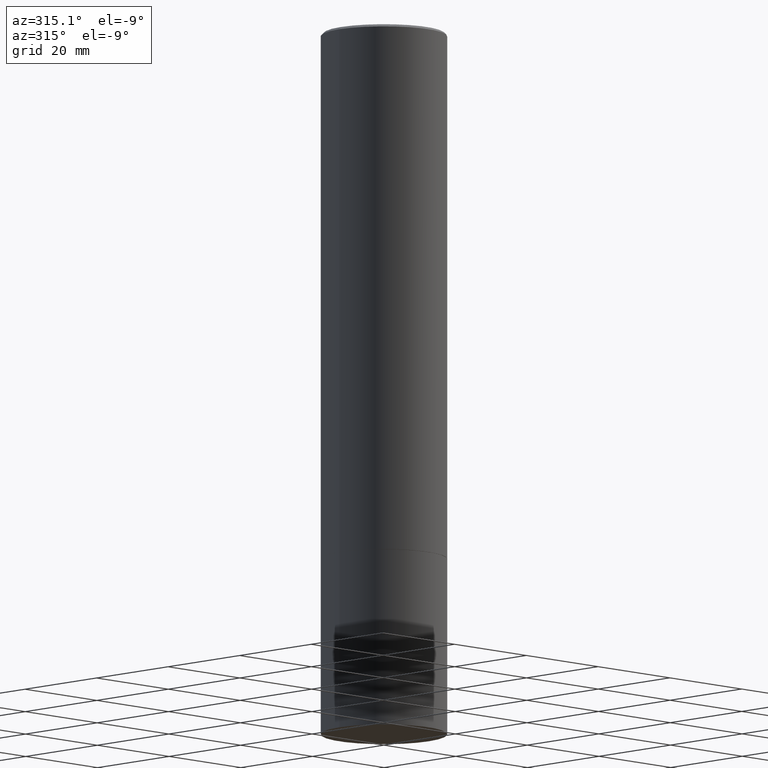
[diagram: clean part render]
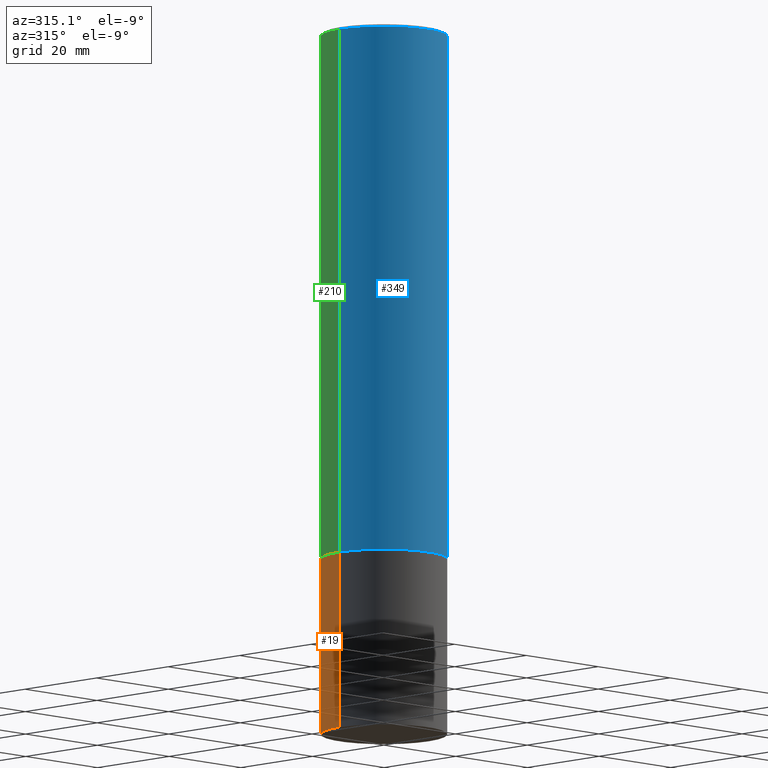
[diagram: same view with three faces highlighted in distinct colors, each labeled with its STEP entity id]
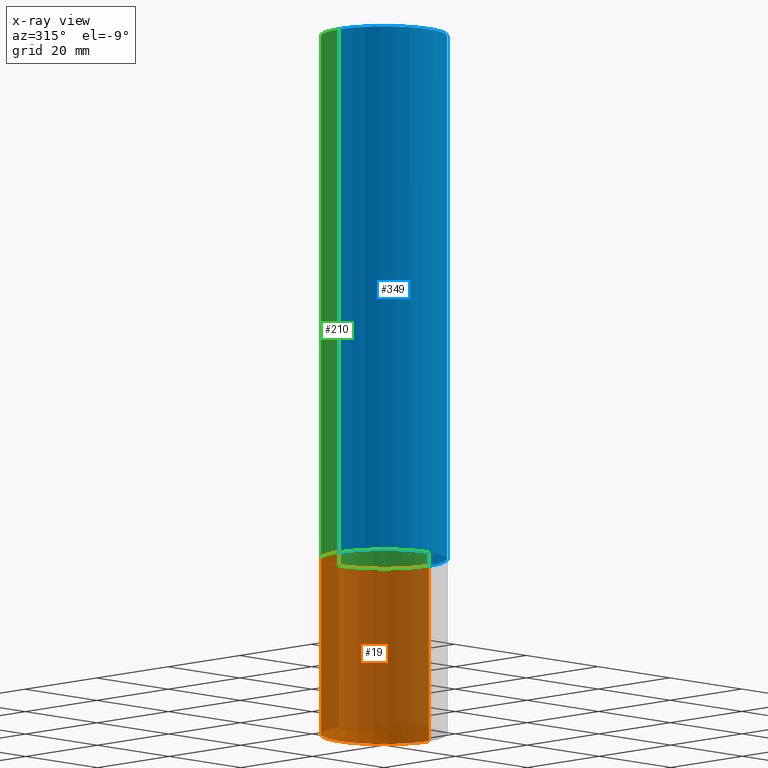
[diagram: x-ray of the same camera — body ghosted, the three highlighted faces saturated]
A machine part, auxiliary view with three faces highlighted in distinct colors.
The next image is the same camera in x-ray (body ghosted, the three faces saturated) — at least one of them is partly hidden behind the body in this view.
Their STEP definitions:

[orange] entity #19 — the highlighted cylindrical surface (partial cylindrical patch) has radius 12.5006 mm, axis along (-0, 0, 1).
#9 = ORIENTED_EDGE ( 'NONE', *, *, #68, .T. ) ;
#13 = VERTEX_POINT ( 'NONE', #352 ) ;
#19 = ADVANCED_FACE ( 'NONE', ( #126 ), #354, .T. ) ;
#24 = DIRECTION ( 'NONE',  ( -2.445468806185136597E-29, 3.491481338843145583E-15, 1.000000000000000000 ) ) ;
#31 = AXIS2_PLACEMENT_3D ( 'NONE', #102, #301, #192 ) ;
#48 = CARTESIAN_POINT ( 'NONE',  ( 0.4921499999999999764, -1.786975064033308982E-14, -4.133799999999999919 ) ) ;
#53 = LINE ( 'NONE', #285, #299 ) ;
#63 = CARTESIAN_POINT ( 'NONE',  ( 1.347893496593123646E-28, -1.924434684343564878E-14, -5.511800000000000033 ) ) ;
#68 = EDGE_CURVE ( 'NONE', #219, #13, #101, .T. ) ;
#73 = CARTESIAN_POINT ( 'NONE',  ( 0.4921499999999999764, -3.436665081823295777E-15, 2.399810400207969603E-29 ) ) ;
#101 = CIRCLE ( 'NONE', #128, 0.4921499999999999764 ) ;
#102 = CARTESIAN_POINT ( 'NONE',  ( 0.000000000000000000, 0.000000000000000000, 0.000000000000000000 ) ) ;
#111 = CARTESIAN_POINT ( 'NONE',  ( -0.4921499999999999764, -1.334178012692939009E-14, -4.133799999999999919 ) ) ;
#126 = FACE_OUTER_BOUND ( 'NONE', #145, .T. ) ;
#127 = DIRECTION ( 'NONE',  ( -2.445468806185136877E-29, 3.491481338843145188E-15, 1.000000000000000000 ) ) ;
#128 = AXIS2_PLACEMENT_3D ( 'NONE', #63, #24, #143 ) ;
#130 = DIRECTION ( 'NONE',  ( -2.445468806185136877E-29, 3.491481338843145188E-15, 1.000000000000000000 ) ) ;
#140 = VERTEX_POINT ( 'NONE', #48 ) ;
#143 = DIRECTION ( 'NONE',  ( 1.000000000000000000, -6.982962677686265922E-15, 0.000000000000000000 ) ) ;
#145 = EDGE_LOOP ( 'NONE', ( #9, #289, #320, #321 ) ) ;
#159 = EDGE_CURVE ( 'NONE', #13, #366, #53, .T. ) ;
#165 = EDGE_CURVE ( 'NONE', #219, #140, #208, .T. ) ;
#174 = DIRECTION ( 'NONE',  ( 1.000000000000000000, -6.982962677686261977E-15, 0.000000000000000000 ) ) ;
#192 = DIRECTION ( 'NONE',  ( 1.000000000000000000, -6.982962677686265922E-15, 4.876176775795935793E-29 ) ) ;
#193 = DIRECTION ( 'NONE',  ( -2.445468806185136597E-29, 3.491481338843145583E-15, 1.000000000000000000 ) ) ;
#194 = VECTOR ( 'NONE', #130, 39.37007874015748143 ) ;
#208 = LINE ( 'NONE', #73, #194 ) ;
#219 = VERTEX_POINT ( 'NONE', #272 ) ;
#220 = CARTESIAN_POINT ( 'NONE',  ( 1.010907895100811684E-28, -1.443308555850979562E-14, -4.133799999999999919 ) ) ;
#272 = CARTESIAN_POINT ( 'NONE',  ( 0.4921499999999999764, -2.268101192525894613E-14, -5.511800000000000033 ) ) ;
#285 = CARTESIAN_POINT ( 'NONE',  ( -0.4921499999999999764, 3.496936074043332897E-15, -2.420853904668951509E-29 ) ) ;
#288 = AXIS2_PLACEMENT_3D ( 'NONE', #220, #193, #174 ) ;
#289 = ORIENTED_EDGE ( 'NONE', *, *, #159, .T. ) ;
#299 = VECTOR ( 'NONE', #127, 39.37007874015748143 ) ;
#301 = DIRECTION ( 'NONE',  ( -2.445468806185136597E-29, 3.491481338843145583E-15, 1.000000000000000000 ) ) ;
#320 = ORIENTED_EDGE ( 'NONE', *, *, #343, .F. ) ;
#321 = ORIENTED_EDGE ( 'NONE', *, *, #165, .F. ) ;
#334 = CIRCLE ( 'NONE', #288, 0.4921499999999999764 ) ;
#343 = EDGE_CURVE ( 'NONE', #140, #366, #334, .T. ) ;
#352 = CARTESIAN_POINT ( 'NONE',  ( -0.4921499999999999764, -1.334178012692939009E-14, -5.511800000000000033 ) ) ;
#354 = CYLINDRICAL_SURFACE ( 'NONE', #31, 0.4921499999999999764 ) ;
#366 = VERTEX_POINT ( 'NONE', #111 ) ;

[blue] entity #349 — the highlighted cylindrical surface (partial cylindrical patch) has radius 12.5006 mm, axis along (-0, 0, 1).
#1 = EDGE_CURVE ( 'NONE', #331, #346, #47, .T. ) ;
#26 = ORIENTED_EDGE ( 'NONE', *, *, #1, .F. ) ;
#46 = DIRECTION ( 'NONE',  ( 1.000000000000000000, -6.982962677686265922E-15, 0.000000000000000000 ) ) ;
#47 = LINE ( 'NONE', #164, #191 ) ;
#55 = CYLINDRICAL_SURFACE ( 'NONE', #212, 0.4921499999999998098 ) ;
#56 = EDGE_LOOP ( 'NONE', ( #26, #70, #278, #305 ) ) ;
#64 = CIRCLE ( 'NONE', #112, 0.4921499999999996433 ) ;
#70 = ORIENTED_EDGE ( 'NONE', *, *, #201, .T. ) ;
#96 = AXIS2_PLACEMENT_3D ( 'NONE', #198, #214, #329 ) ;
#106 = CARTESIAN_POINT ( 'NONE',  ( 4.890937612370302060E-31, -6.982962677686331052E-17, -0.02000000000000011491 ) ) ;
#112 = AXIS2_PLACEMENT_3D ( 'NONE', #106, #326, #46 ) ;
#134 = CARTESIAN_POINT ( 'NONE',  ( -0.4921500000000000319, -3.752775777930571902E-15, -4.132800000000000473 ) ) ;
#139 = VECTOR ( 'NONE', #268, 39.37007874015748143 ) ;
#148 = CARTESIAN_POINT ( 'NONE',  ( 0.4921499999999998098, -3.436665081823294593E-15, 2.399810400207968762E-29 ) ) ;
#164 = CARTESIAN_POINT ( 'NONE',  ( -0.4921499999999998098, 3.496936074043331714E-15, -2.420853904668950949E-29 ) ) ;
#179 = EDGE_CURVE ( 'NONE', #346, #224, #64, .T. ) ;
#191 = VECTOR ( 'NONE', #206, 39.37007874015748143 ) ;
#198 = CARTESIAN_POINT ( 'NONE',  ( 1.010663348220193347E-28, -1.442959407717095419E-14, -4.132800000000000473 ) ) ;
#201 = EDGE_CURVE ( 'NONE', #331, #355, #286, .T. ) ;
#206 = DIRECTION ( 'NONE',  ( -2.445468806185136877E-29, 3.491481338843145188E-15, 1.000000000000000000 ) ) ;
#212 = AXIS2_PLACEMENT_3D ( 'NONE', #273, #335, #357 ) ;
#214 = DIRECTION ( 'NONE',  ( -2.445468806185136597E-29, 3.491481338843145583E-15, 1.000000000000000000 ) ) ;
#224 = VERTEX_POINT ( 'NONE', #336 ) ;
#232 = LINE ( 'NONE', #148, #139 ) ;
#248 = CARTESIAN_POINT ( 'NONE',  ( -0.4921499999999996433, 3.366835455046430112E-15, -0.02000000000000011491 ) ) ;
#268 = DIRECTION ( 'NONE',  ( -2.445468806185136877E-29, 3.491481338843145188E-15, 1.000000000000000000 ) ) ;
#273 = CARTESIAN_POINT ( 'NONE',  ( 0.000000000000000000, 0.000000000000000000, 0.000000000000000000 ) ) ;
#278 = ORIENTED_EDGE ( 'NONE', *, *, #323, .T. ) ;
#286 = CIRCLE ( 'NONE', #96, 0.4921500000000000319 ) ;
#305 = ORIENTED_EDGE ( 'NONE', *, *, #179, .F. ) ;
#323 = EDGE_CURVE ( 'NONE', #355, #224, #232, .T. ) ;
#326 = DIRECTION ( 'NONE',  ( -2.445468806185136597E-29, 3.491481338843145583E-15, 1.000000000000000000 ) ) ;
#329 = DIRECTION ( 'NONE',  ( 1.000000000000000000, -6.982962677686265133E-15, 0.000000000000000000 ) ) ;
#331 = VERTEX_POINT ( 'NONE', #134 ) ;
#332 = CARTESIAN_POINT ( 'NONE',  ( 0.4921500000000000319, -1.786625915899424839E-14, -4.132800000000000473 ) ) ;
#335 = DIRECTION ( 'NONE',  ( -2.445468806185136597E-29, 3.491481338843145583E-15, 1.000000000000000000 ) ) ;
#336 = CARTESIAN_POINT ( 'NONE',  ( 0.4921499999999996433, -3.446223716380119982E-15, -0.02000000000000011491 ) ) ;
#346 = VERTEX_POINT ( 'NONE', #248 ) ;
#349 = ADVANCED_FACE ( 'NONE', ( #359 ), #55, .T. ) ;
#355 = VERTEX_POINT ( 'NONE', #332 ) ;
#357 = DIRECTION ( 'NONE',  ( 1.000000000000000000, -6.982962677686265922E-15, 4.876176775795935793E-29 ) ) ;
#359 = FACE_OUTER_BOUND ( 'NONE', #56, .T. ) ;

[green] entity #210 — the highlighted cylindrical surface (partial cylindrical patch) has radius 12.5006 mm, axis along (-0, 0, 1).
#1 = EDGE_CURVE ( 'NONE', #331, #346, #47, .T. ) ;
#18 = CARTESIAN_POINT ( 'NONE',  ( 4.890937612370302060E-31, -6.982962677686331052E-17, -0.02000000000000011491 ) ) ;
#34 = DIRECTION ( 'NONE',  ( -2.445468806185136597E-29, 3.491481338843145583E-15, 1.000000000000000000 ) ) ;
#47 = LINE ( 'NONE', #164, #191 ) ;
#54 = CARTESIAN_POINT ( 'NONE',  ( 0.000000000000000000, 0.000000000000000000, 0.000000000000000000 ) ) ;
#80 = DIRECTION ( 'NONE',  ( -2.445468806185136597E-29, 3.491481338843145583E-15, 1.000000000000000000 ) ) ;
#87 = CIRCLE ( 'NONE', #162, 0.4921500000000000319 ) ;
#113 = EDGE_CURVE ( 'NONE', #355, #331, #87, .T. ) ;
#134 = CARTESIAN_POINT ( 'NONE',  ( -0.4921500000000000319, -3.752775777930571902E-15, -4.132800000000000473 ) ) ;
#139 = VECTOR ( 'NONE', #268, 39.37007874015748143 ) ;
#148 = CARTESIAN_POINT ( 'NONE',  ( 0.4921499999999998098, -3.436665081823294593E-15, 2.399810400207968762E-29 ) ) ;
#153 = DIRECTION ( 'NONE',  ( 1.000000000000000000, -6.982962677686265133E-15, 0.000000000000000000 ) ) ;
#158 = ORIENTED_EDGE ( 'NONE', *, *, #1, .T. ) ;
#162 = AXIS2_PLACEMENT_3D ( 'NONE', #284, #34, #153 ) ;
#164 = CARTESIAN_POINT ( 'NONE',  ( -0.4921499999999998098, 3.496936074043331714E-15, -2.420853904668950949E-29 ) ) ;
#169 = FACE_OUTER_BOUND ( 'NONE', #257, .T. ) ;
#170 = AXIS2_PLACEMENT_3D ( 'NONE', #54, #80, #221 ) ;
#172 = DIRECTION ( 'NONE',  ( -2.445468806185136597E-29, 3.491481338843145583E-15, 1.000000000000000000 ) ) ;
#187 = ORIENTED_EDGE ( 'NONE', *, *, #217, .F. ) ;
#191 = VECTOR ( 'NONE', #206, 39.37007874015748143 ) ;
#206 = DIRECTION ( 'NONE',  ( -2.445468806185136877E-29, 3.491481338843145188E-15, 1.000000000000000000 ) ) ;
#210 = ADVANCED_FACE ( 'NONE', ( #169 ), #269, .T. ) ;
#217 = EDGE_CURVE ( 'NONE', #224, #346, #327, .T. ) ;
#221 = DIRECTION ( 'NONE',  ( 1.000000000000000000, -6.982962677686265922E-15, 4.876176775795935793E-29 ) ) ;
#224 = VERTEX_POINT ( 'NONE', #336 ) ;
#232 = LINE ( 'NONE', #148, #139 ) ;
#242 = ORIENTED_EDGE ( 'NONE', *, *, #323, .F. ) ;
#245 = DIRECTION ( 'NONE',  ( 1.000000000000000000, -6.982962677686265922E-15, 0.000000000000000000 ) ) ;
#248 = CARTESIAN_POINT ( 'NONE',  ( -0.4921499999999996433, 3.366835455046430112E-15, -0.02000000000000011491 ) ) ;
#257 = EDGE_LOOP ( 'NONE', ( #313, #158, #187, #242 ) ) ;
#258 = AXIS2_PLACEMENT_3D ( 'NONE', #18, #172, #245 ) ;
#268 = DIRECTION ( 'NONE',  ( -2.445468806185136877E-29, 3.491481338843145188E-15, 1.000000000000000000 ) ) ;
#269 = CYLINDRICAL_SURFACE ( 'NONE', #170, 0.4921499999999998098 ) ;
#284 = CARTESIAN_POINT ( 'NONE',  ( 1.010663348220193347E-28, -1.442959407717095419E-14, -4.132800000000000473 ) ) ;
#313 = ORIENTED_EDGE ( 'NONE', *, *, #113, .T. ) ;
#323 = EDGE_CURVE ( 'NONE', #355, #224, #232, .T. ) ;
#327 = CIRCLE ( 'NONE', #258, 0.4921499999999996433 ) ;
#331 = VERTEX_POINT ( 'NONE', #134 ) ;
#332 = CARTESIAN_POINT ( 'NONE',  ( 0.4921500000000000319, -1.786625915899424839E-14, -4.132800000000000473 ) ) ;
#336 = CARTESIAN_POINT ( 'NONE',  ( 0.4921499999999996433, -3.446223716380119982E-15, -0.02000000000000011491 ) ) ;
#346 = VERTEX_POINT ( 'NONE', #248 ) ;
#355 = VERTEX_POINT ( 'NONE', #332 ) ;